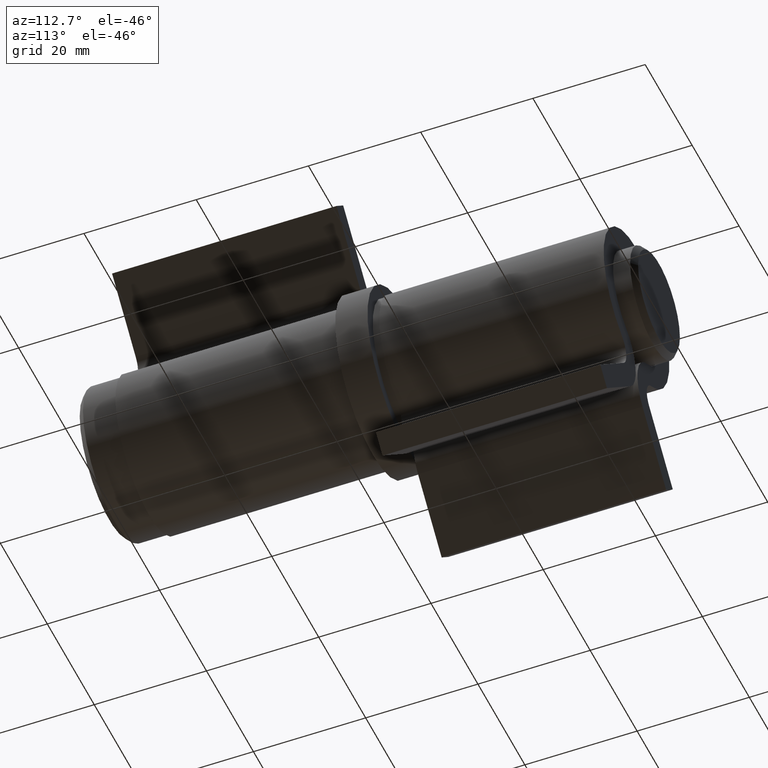
[diagram: clean part render]
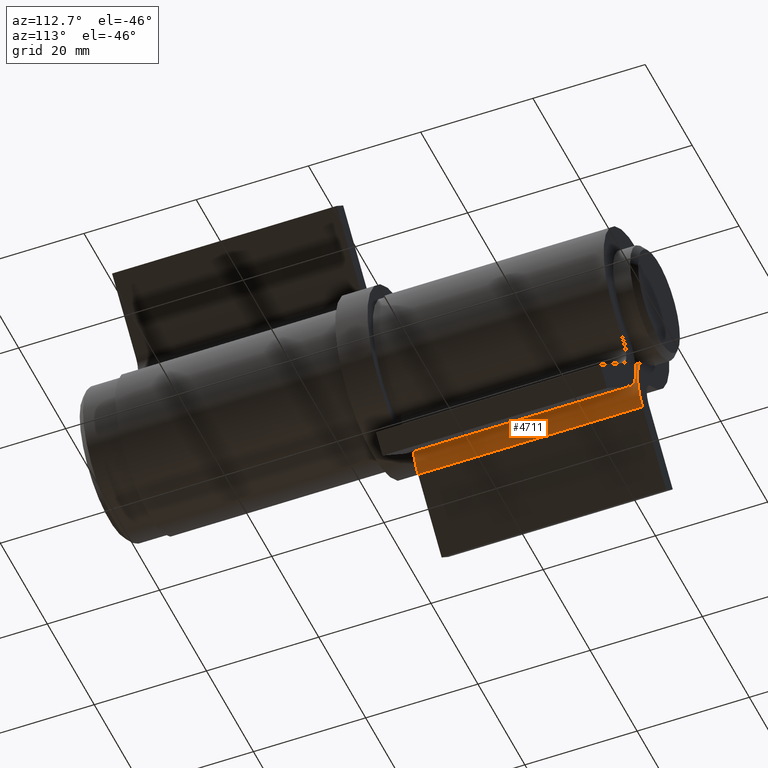
[diagram: same view with one face highlighted and labeled with its STEP entity id]
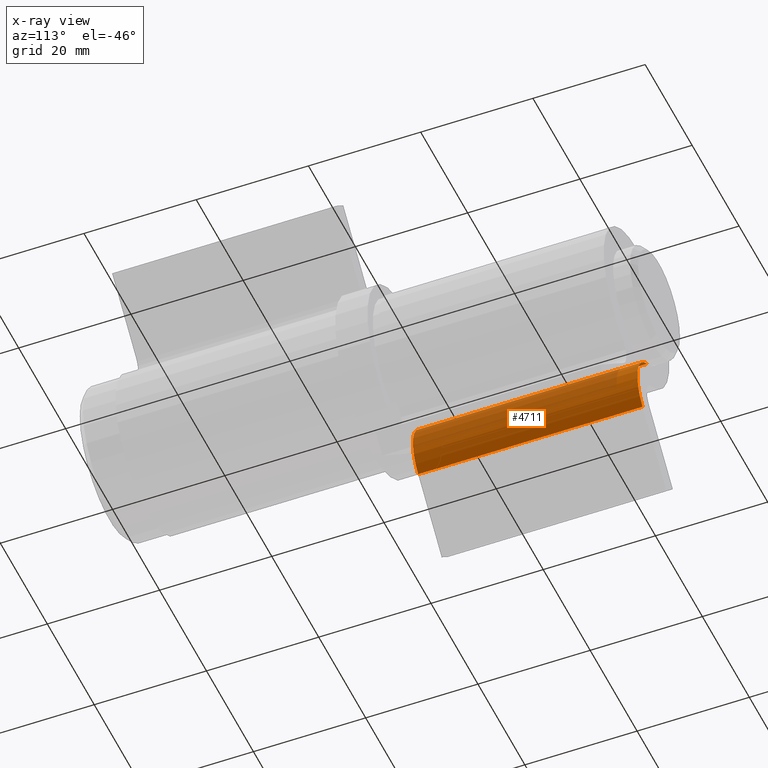
[diagram: x-ray of the same camera — body ghosted, the highlighted face saturated]
A machine part, auxiliary view. The second image highlights one B-rep face of the part: STEP entity #4711.
The next image is the same camera in x-ray: the body ghosted, the highlighted face saturated — about 35% of this face is hidden behind the body in this view.
In plain terms, the highlighted cylindrical surface (partial cylindrical patch) has radius 7.5 mm, axis along (0, -1, 0).
Its self-contained STEP definition (entity closure, byte-faithful):
#37 = EDGE_CURVE ( 'NONE', #4811, #6224, #6127, .T. ) ;
#583 = EDGE_LOOP ( 'NONE', ( #5723, #11426, #11542, #7907 ) ) ;
#638 = CIRCLE ( 'NONE', #12363, 7.500000000000071054 ) ;
#719 = EDGE_CURVE ( 'NONE', #10398, #4811, #8656, .T. ) ;
#1332 = FACE_OUTER_BOUND ( 'NONE', #583, .T. ) ;
#3099 = CARTESIAN_POINT ( 'NONE',  ( -4.490430187397044470, 19.99999999999998934, -8.935101383426770738 ) ) ;
#3200 = DIRECTION ( 'NONE',  ( 0.000000000000000000, 1.000000000000000000, 0.000000000000000000 ) ) ;
#3757 = LINE ( 'NONE', #7688, #11171 ) ;
#3995 = DIRECTION ( 'NONE',  ( -0.000000000000000000, -1.000000000000000000, 0.000000000000000000 ) ) ;
#4277 = CARTESIAN_POINT ( 'NONE',  ( -2.554951969045671678, -20.00000000000000355, -20.93972827989598784 ) ) ;
#4711 = ADVANCED_FACE ( 'NONE', ( #1332 ), #11132, .T. ) ;
#4811 = VERTEX_POINT ( 'NONE', #11091 ) ;
#4996 = AXIS2_PLACEMENT_3D ( 'NONE', #6081, #7137, #8156 ) ;
#5723 = ORIENTED_EDGE ( 'NONE', *, *, #11420, .T. ) ;
#5767 = VERTEX_POINT ( 'NONE', #7937 ) ;
#6024 = DIRECTION ( 'NONE',  ( 0.000000000000000000, 1.000000000000000000, 0.000000000000000000 ) ) ;
#6081 = CARTESIAN_POINT ( 'NONE',  ( -7.858252827944821384, 19.99999999999998934, -15.63642742099687410 ) ) ;
#6120 = DIRECTION ( 'NONE',  ( -0.000000000000000000, -1.000000000000000000, 0.000000000000000000 ) ) ;
#6127 = LINE ( 'NONE', #10952, #10982 ) ;
#6224 = VERTEX_POINT ( 'NONE', #4277 ) ;
#7137 = DIRECTION ( 'NONE',  ( -0.000000000000000000, -1.000000000000000000, 0.000000000000000000 ) ) ;
#7688 = CARTESIAN_POINT ( 'NONE',  ( -4.490430187397044470, 19.99999999999998934, -8.935101383426770738 ) ) ;
#7907 = ORIENTED_EDGE ( 'NONE', *, *, #10746, .T. ) ;
#7937 = CARTESIAN_POINT ( 'NONE',  ( -4.490430187397044470, -20.00000000000000355, -8.935101383426770738 ) ) ;
#8156 = DIRECTION ( 'NONE',  ( 0.000000000000000000, 0.000000000000000000, -1.000000000000000000 ) ) ;
#8656 = CIRCLE ( 'NONE', #11698, 7.500000000000071054 ) ;
#9819 = DIRECTION ( 'NONE',  ( 0.000000000000000000, 0.000000000000000000, 1.000000000000000000 ) ) ;
#9914 = DIRECTION ( 'NONE',  ( 0.000000000000000000, 0.000000000000000000, 1.000000000000000000 ) ) ;
#10398 = VERTEX_POINT ( 'NONE', #3099 ) ;
#10746 = EDGE_CURVE ( 'NONE', #10398, #5767, #3757, .T. ) ;
#10952 = CARTESIAN_POINT ( 'NONE',  ( -2.554951969045671678, 19.99999999999998934, -20.93972827989598784 ) ) ;
#10982 = VECTOR ( 'NONE', #6120, 1000.000000000000000 ) ;
#11091 = CARTESIAN_POINT ( 'NONE',  ( -2.554951969045671678, 19.99999999999998934, -20.93972827989598784 ) ) ;
#11132 = CYLINDRICAL_SURFACE ( 'NONE', #4996, 7.500000000000072831 ) ;
#11171 = VECTOR ( 'NONE', #3995, 1000.000000000000000 ) ;
#11420 = EDGE_CURVE ( 'NONE', #5767, #6224, #638, .T. ) ;
#11426 = ORIENTED_EDGE ( 'NONE', *, *, #37, .F. ) ;
#11542 = ORIENTED_EDGE ( 'NONE', *, *, #719, .F. ) ;
#11698 = AXIS2_PLACEMENT_3D ( 'NONE', #11736, #6024, #9819 ) ;
#11736 = CARTESIAN_POINT ( 'NONE',  ( -7.858252827944821384, 19.99999999999998934, -15.63642742099687410 ) ) ;
#11826 = CARTESIAN_POINT ( 'NONE',  ( -7.858252827944821384, -20.00000000000000355, -15.63642742099687410 ) ) ;
#12363 = AXIS2_PLACEMENT_3D ( 'NONE', #11826, #3200, #9914 ) ;